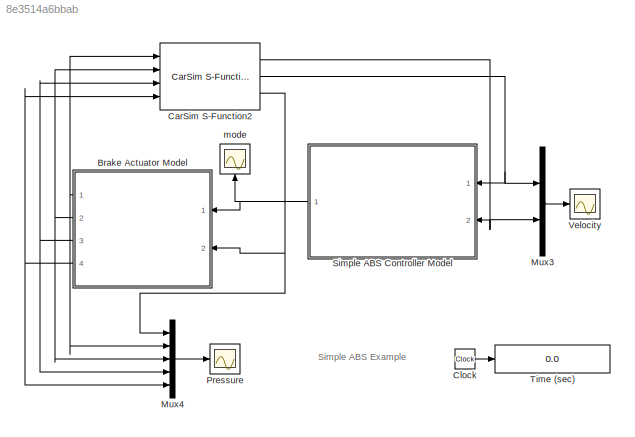
MODEL slx_8e3514a6bbab
KIND model
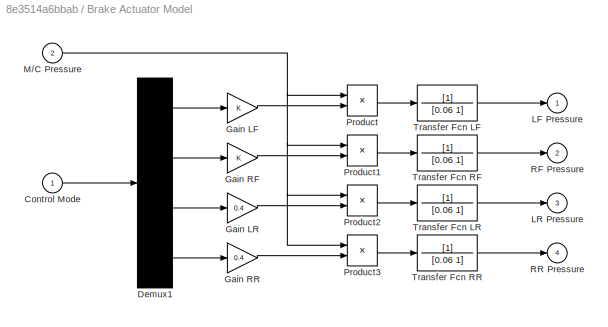
BLOCK [SubSystem] Brake Actuator Model
  FunctionWithSeparateData = off
  MaskHideContents = off
  MinAlgLoopOccurrences = off
  Opaque = off
  Ports = [2, 4]
  PropExecContextOutsideSubsystem = off
  RTWSystemCode = Auto
  RequestExecContextInheritance = off
BLOCK [Inport] Brake Actuator Model/Control Mode
  IconDisplay = Port number
BLOCK [Demux] Brake Actuator Model/Demux1
  Ports = [1, 4]
BLOCK [Gain] Brake Actuator Model/Gain LF
BLOCK [Gain] Brake Actuator Model/Gain LR
  Gain = 0.4
BLOCK [Gain] Brake Actuator Model/Gain RF
BLOCK [Gain] Brake Actuator Model/Gain RR
  Gain = 0.4
BLOCK [Outport] Brake Actuator Model/LF Pressure
  IconDisplay = Port number
  InitialOutput = 0
BLOCK [Outport] Brake Actuator Model/LR Pressure
  IconDisplay = Port number
  InitialOutput = 0
  Port = 3
BLOCK [Inport] Brake Actuator Model/M//C Pressure
  IconDisplay = Port number
  Port = 2
BLOCK [Product] Brake Actuator Model/Product
  Ports = [2, 1]
  RndMeth = Floor
BLOCK [Product] Brake Actuator Model/Product1
  Ports = [2, 1]
  RndMeth = Floor
BLOCK [Product] Brake Actuator Model/Product2
  Ports = [2, 1]
  RndMeth = Floor
BLOCK [Product] Brake Actuator Model/Product3
  Ports = [2, 1]
  RndMeth = Floor
BLOCK [Outport] Brake Actuator Model/RF Pressure
  IconDisplay = Port number
  InitialOutput = 0
  Port = 2
BLOCK [Outport] Brake Actuator Model/RR Pressure
  IconDisplay = Port number
  InitialOutput = 0
  Port = 4
BLOCK [TransferFcn] Brake Actuator Model/Transfer Fcn LF
  Denominator = [0.06 1]
BLOCK [TransferFcn] Brake Actuator Model/Transfer Fcn LR
  Denominator = [0.06 1]
BLOCK [TransferFcn] Brake Actuator Model/Transfer Fcn RF
  Denominator = [0.06 1]
BLOCK [TransferFcn] Brake Actuator Model/Transfer Fcn RR
  Denominator = [0.06 1]
BLOCK [Reference] CarSim S-Function2  REF=Solver_SF/CarSim S-Function2
  AttributesFormatString = Vehicle Code: %<VehicleCode>
  Ports = [4, 3]
  Priority = 1
  SIMFILE = simfile.sim
  SourceBlock = Solver_SF/CarSim S-Function2
  SourceType = Vehicle math model library
  VehicleCode = i_i
BLOCK [Clock] Clock
BLOCK [Mux] Mux3
  DisplayOption = bar
  Inputs = 2
  Ports = [2, 1]
BLOCK [Mux] Mux4
  DisplayOption = bar
  Inputs = 5
  Ports = [5, 1]
BLOCK [Scope] Pressure
  Floating = off
  LimitDataPoints = off
  NumInputPorts = 1
  Ports = [1]
  SampleTime = 100
  ShowLegends = off
  TickLabels = on
  YMax = 20
  YMin = 0
  ZoomMode = yonly
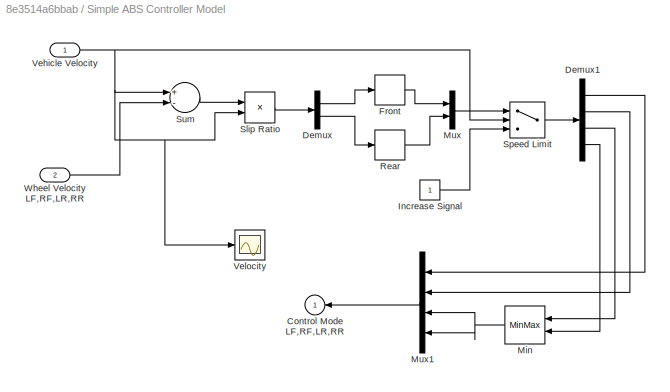
BLOCK [SubSystem] Simple ABS Controller Model
  FunctionWithSeparateData = off
  MaskHideContents = off
  MinAlgLoopOccurrences = off
  Opaque = off
  Ports = [2, 1]
  PropExecContextOutsideSubsystem = off
  RTWSystemCode = Auto
  RequestExecContextInheritance = off
BLOCK [Outport] Simple ABS Controller Model/Control Mode LF,RF,LR,RR
  IconDisplay = Port number
  InitialOutput = 0
BLOCK [Demux] Simple ABS Controller Model/Demux
  Outputs = [2 2]
  Ports = [1, 2]
BLOCK [Demux] Simple ABS Controller Model/Demux1
  Ports = [1, 4]
BLOCK [Relay] Simple ABS Controller Model/Front
  OffOutputValue = 1
  OffSwitchValue = 0.05
  OnOutputValue = 0
  OnSwitchValue = 0.1
BLOCK [Constant] Simple ABS Controller Model/Increase Signal
BLOCK [MinMax] Simple ABS Controller Model/Min
  Inputs = 2
  Ports = [2, 1]
BLOCK [Mux] Simple ABS Controller Model/Mux
  DisplayOption = bar
  Inputs = 2
  Ports = [2, 1]
BLOCK [Mux] Simple ABS Controller Model/Mux1
  DisplayOption = bar
  Ports = [4, 1]
BLOCK [Relay] Simple ABS Controller Model/Rear
  OffOutputValue = 1
  OffSwitchValue = 0.05
  OnOutputValue = 0
  OnSwitchValue = 0.1
BLOCK [Product] Simple ABS Controller Model/Slip Ratio
  Inputs = */
  Ports = [2, 1]
  RndMeth = Floor
BLOCK [Switch] Simple ABS Controller Model/Speed Limit
  Threshold = 3
BLOCK [Sum] Simple ABS Controller Model/Sum
  Inputs = +-
  Ports = [2, 1]
BLOCK [Inport] Simple ABS Controller Model/Vehicle Velocity
  IconDisplay = Port number
BLOCK [Scope] Simple ABS Controller Model/Velocity
  Floating = off
  LimitDataPoints = off
  NumInputPorts = 1
  Ports = [1]
  SampleTime = 100
  SaveName = ScopeData1
  ShowLegends = off
  TickLabels = on
  YMax = 100
  YMin = -10
  ZoomMode = yonly
BLOCK [Inport] Simple ABS Controller Model/Wheel Velocity LF,RF,LR,RR
  IconDisplay = Port number
  Port = 2
BLOCK [Display] Time (sec)
  Decimation = 100
  Format = bank
  Lockdown = off
  Ports = [1]
BLOCK [Scope] Velocity
  Floating = off
  LimitDataPoints = off
  NumInputPorts = 1
  Ports = [1]
  SampleTime = 100
  ShowLegends = off
  TickLabels = on
  YMax = 100
  YMin = -10
  ZoomMode = xonly
BLOCK [Scope] mode
  Floating = off
  LimitDataPoints = off
  NumInputPorts = 1
  Ports = [1]
  SampleTime = 100
  ShowLegends = off
  TickLabels = on
  YMax = 1
  YMin = 0
ANNOTATION (root): Simple ABS Example
LINE Brake Actuator Model/Control Mode:1 -> Brake Actuator Model/Demux1:1
LINE Brake Actuator Model/Demux1:1 -> Brake Actuator Model/Gain LF:1
LINE Brake Actuator Model/Demux1:2 -> Brake Actuator Model/Gain RF:1
LINE Brake Actuator Model/Demux1:3 -> Brake Actuator Model/Gain LR:1
LINE Brake Actuator Model/Demux1:4 -> Brake Actuator Model/Gain RR:1
LINE Brake Actuator Model/Gain LF:1 -> Brake Actuator Model/Product:2
LINE Brake Actuator Model/Gain LR:1 -> Brake Actuator Model/Product2:2
LINE Brake Actuator Model/Gain RF:1 -> Brake Actuator Model/Product1:2
LINE Brake Actuator Model/Gain RR:1 -> Brake Actuator Model/Product3:2
NET Brake Actuator Model/M//C Pressure:1 -> Brake Actuator Model/Product1:1, Brake Actuator Model/Product2:1, Brake Actuator Model/Product3:1, Brake Actuator Model/Product:1
LINE Brake Actuator Model/Product1:1 -> Brake Actuator Model/Transfer Fcn RF:1
LINE Brake Actuator Model/Product2:1 -> Brake Actuator Model/Transfer Fcn LR:1
LINE Brake Actuator Model/Product3:1 -> Brake Actuator Model/Transfer Fcn RR:1
LINE Brake Actuator Model/Product:1 -> Brake Actuator Model/Transfer Fcn LF:1
LINE Brake Actuator Model/Transfer Fcn LF:1 -> Brake Actuator Model/LF Pressure:1
LINE Brake Actuator Model/Transfer Fcn LR:1 -> Brake Actuator Model/LR Pressure:1
LINE Brake Actuator Model/Transfer Fcn RF:1 -> Brake Actuator Model/RF Pressure:1
LINE Brake Actuator Model/Transfer Fcn RR:1 -> Brake Actuator Model/RR Pressure:1
NET Brake Actuator Model:1 -> CarSim S-Function2:1, Mux4:2
NET Brake Actuator Model:2 -> CarSim S-Function2:2, Mux4:3
NET Brake Actuator Model:3 -> CarSim S-Function2:3, Mux4:4
NET Brake Actuator Model:4 -> CarSim S-Function2:4, Mux4:5
NET CarSim S-Function2:1 -> Mux3:2, Simple ABS Controller Model:2
NET CarSim S-Function2:2 -> Mux3:1, Simple ABS Controller Model:1
NET CarSim S-Function2:3 -> Brake Actuator Model:2, Mux4:1
LINE Clock:1 -> Time (sec):1
LINE Mux3:1 -> Velocity:1
LINE Mux4:1 -> Pressure:1
LINE Simple ABS Controller Model/Demux1:1 -> Simple ABS Controller Model/Mux1:1
LINE Simple ABS Controller Model/Demux1:2 -> Simple ABS Controller Model/Mux1:2
LINE Simple ABS Controller Model/Demux1:3 -> Simple ABS Controller Model/Min:1
LINE Simple ABS Controller Model/Demux1:4 -> Simple ABS Controller Model/Min:2
LINE Simple ABS Controller Model/Demux:1 -> Simple ABS Controller Model/Front:1
LINE Simple ABS Controller Model/Demux:2 -> Simple ABS Controller Model/Rear:1
LINE Simple ABS Controller Model/Front:1 -> Simple ABS Controller Model/Mux:1
LINE Simple ABS Controller Model/Increase Signal:1 -> Simple ABS Controller Model/Speed Limit:3
NET Simple ABS Controller Model/Min:1 -> Simple ABS Controller Model/Mux1:3, Simple ABS Controller Model/Mux1:4
LINE Simple ABS Controller Model/Mux1:1 -> Simple ABS Controller Model/Control Mode LF,RF,LR,RR:1
LINE Simple ABS Controller Model/Mux:1 -> Simple ABS Controller Model/Speed Limit:1
LINE Simple ABS Controller Model/Rear:1 -> Simple ABS Controller Model/Mux:2
LINE Simple ABS Controller Model/Slip Ratio:1 -> Simple ABS Controller Model/Demux:1
LINE Simple ABS Controller Model/Speed Limit:1 -> Simple ABS Controller Model/Demux1:1
LINE Simple ABS Controller Model/Sum:1 -> Simple ABS Controller Model/Slip Ratio:1
NET Simple ABS Controller Model/Vehicle Velocity:1 -> Simple ABS Controller Model/Slip Ratio:2, Simple ABS Controller Model/Speed Limit:2, Simple ABS Controller Model/Sum:1, Simple ABS Controller Model/Velocity:1
LINE Simple ABS Controller Model/Wheel Velocity LF,RF,LR,RR:1 -> Simple ABS Controller Model/Sum:2
NET Simple ABS Controller Model:1 -> Brake Actuator Model:1, mode:1
note: NET lines group one-source signal fan-out (src -> all destinations, sorted); 1:1 wires keep LINE
